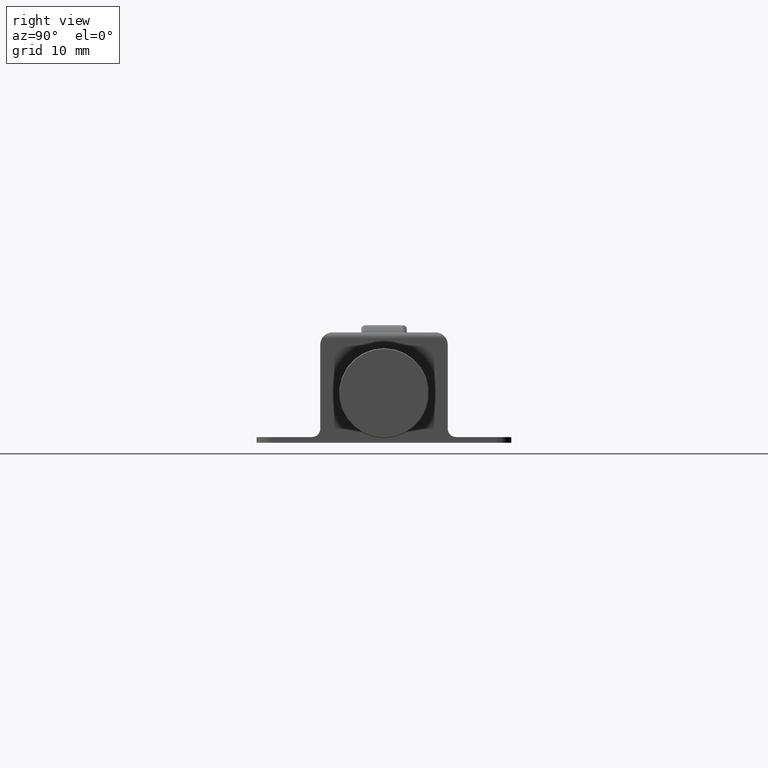
[diagram: clean part render]
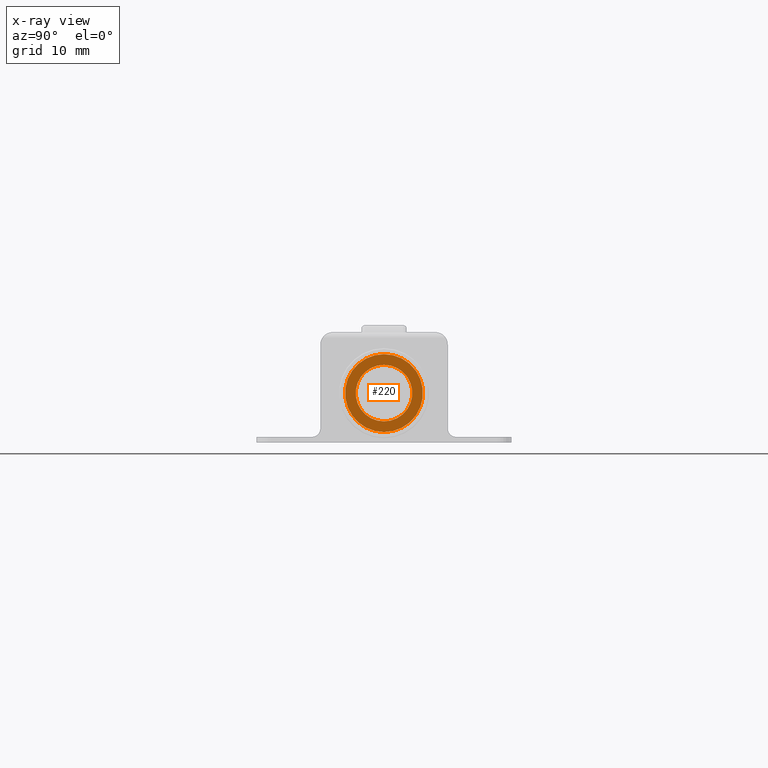
[diagram: x-ray — body ghosted, one internal face saturated and labeled with its STEP entity id]
A machine part, right view, then the same camera in x-ray: the body is ghosted and one INTERNAL B-rep face — a face not visible from any outside direction — is saturated and labeled: STEP entity #220.
In plain terms, the highlighted planar face has unit normal (1, 0, 0).
Its self-contained STEP definition (entity closure, byte-faithful):
#220=ADVANCED_FACE('',(#1008,#1009),#1007,.T.);
#1007=PLANE('',#2028);
#1008=FACE_OUTER_BOUND('',#2029,.T.);
#1009=FACE_BOUND('',#2030,.T.);
#2025=CARTESIAN_POINT('',(3.17000000000E+01,-1.14315353300E+01,1.33500000000E+01));
#2026=DIRECTION('',(1.00000000000E+00,0.00000000000E+00,0.00000000000E+00));
#2027=DIRECTION('',(0.00000000000E+00,0.00000000000E+00,-1.00000000000E+00));
#2028=AXIS2_PLACEMENT_3D('',#2025,#2026,#2027);
#2029=EDGE_LOOP('',(#2737,#2738));
#2030=EDGE_LOOP('',(#2739,#2740));
#2737=ORIENTED_EDGE('',*,*,#3224,.F.);
#2738=ORIENTED_EDGE('',*,*,#3225,.F.);
#2739=ORIENTED_EDGE('',*,*,#3226,.T.);
#2740=ORIENTED_EDGE('',*,*,#3227,.T.);
#3224=EDGE_CURVE('',#4640,#4641,#4642,.T.);
#3225=EDGE_CURVE('',#4641,#4640,#4648,.T.);
#3226=EDGE_CURVE('',#4654,#4655,#4656,.T.);
#3227=EDGE_CURVE('',#4655,#4654,#4662,.T.);
#4640=VERTEX_POINT('',#6389);
#4641=VERTEX_POINT('',#6390);
#4642=CIRCLE('',#6394,5.50000000000E+00);
#4648=CIRCLE('',#6398,5.50000000000E+00);
#4654=VERTEX_POINT('',#6399);
#4655=VERTEX_POINT('',#6400);
#4656=CIRCLE('',#6404,4.00000000000E+00);
#4662=CIRCLE('',#6408,4.00000000000E+00);
#6389=CARTESIAN_POINT('',(3.17000000000E+01,2.96059473233E-16,7.00000000000E-01));
#6390=CARTESIAN_POINT('',(3.17000000000E+01,0.00000000000E+00,1.17000000000E+01));
#6391=CARTESIAN_POINT('',(3.17000000000E+01,0.00000000000E+00,6.20000000000E+00));
#6392=DIRECTION('',(-1.00000000000E+00,0.00000000000E+00,0.00000000000E+00));
#6393=DIRECTION('',(0.00000000000E+00,-1.22460635382E-16,1.00000000000E+00));
#6394=AXIS2_PLACEMENT_3D('',#6391,#6392,#6393);
#6395=CARTESIAN_POINT('',(3.17000000000E+01,0.00000000000E+00,6.20000000000E+00));
#6396=DIRECTION('',(-1.00000000000E+00,0.00000000000E+00,0.00000000000E+00));
#6397=DIRECTION('',(0.00000000000E+00,-1.22460635382E-16,1.00000000000E+00));
#6398=AXIS2_PLACEMENT_3D('',#6395,#6396,#6397);
#6399=CARTESIAN_POINT('',(3.17000000000E+01,0.00000000000E+00,1.02000000000E+01));
#6400=CARTESIAN_POINT('',(3.17000000000E+01,4.44089209850E-16,2.20000000000E+00));
#6401=CARTESIAN_POINT('',(3.17000000000E+01,0.00000000000E+00,6.20000000000E+00));
#6402=DIRECTION('',(-1.00000000000E+00,0.00000000000E+00,0.00000000000E+00));
#6403=DIRECTION('',(0.00000000000E+00,-1.22460635382E-16,1.00000000000E+00));
#6404=AXIS2_PLACEMENT_3D('',#6401,#6402,#6403);
#6405=CARTESIAN_POINT('',(3.17000000000E+01,0.00000000000E+00,6.20000000000E+00));
#6406=DIRECTION('',(-1.00000000000E+00,0.00000000000E+00,0.00000000000E+00));
#6407=DIRECTION('',(0.00000000000E+00,-1.22460635382E-16,1.00000000000E+00));
#6408=AXIS2_PLACEMENT_3D('',#6405,#6406,#6407);